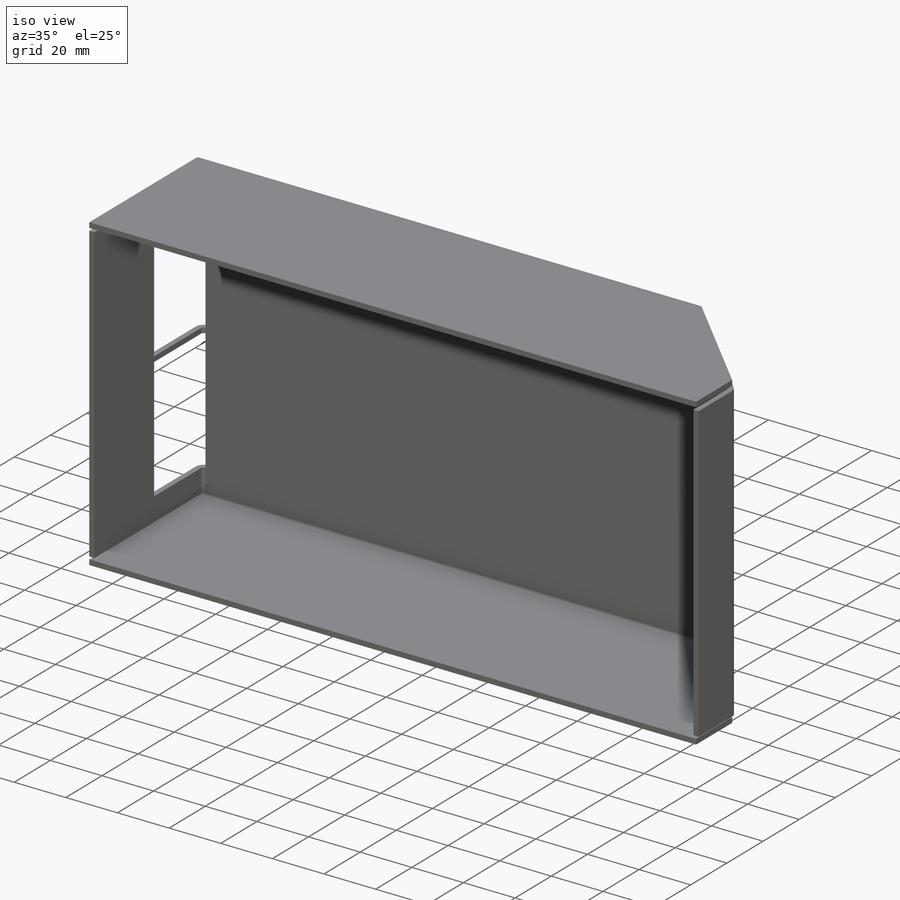
[diagram: iso view]
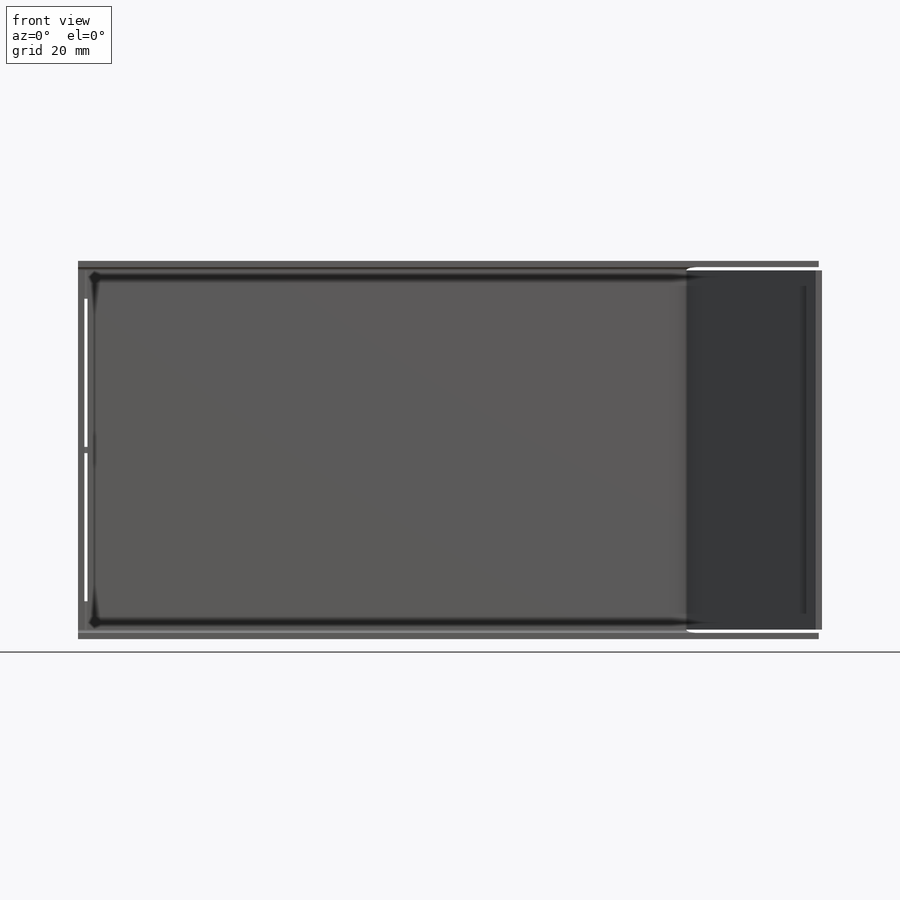
[diagram: front view]
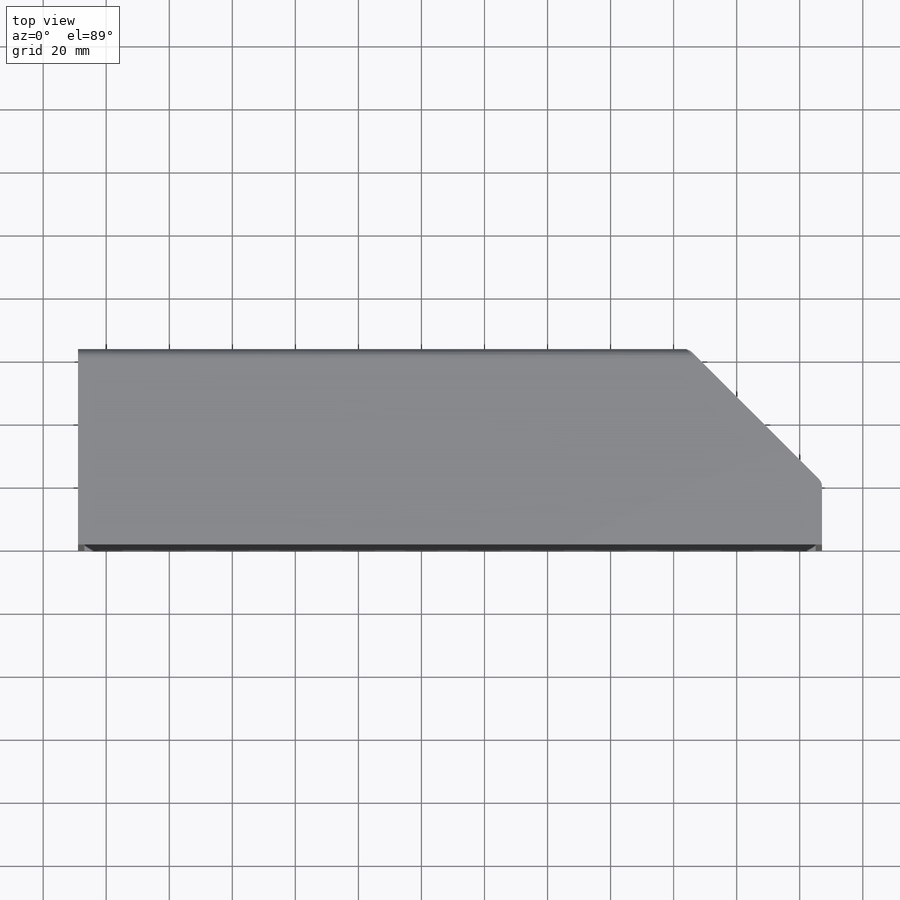
[diagram: top view]
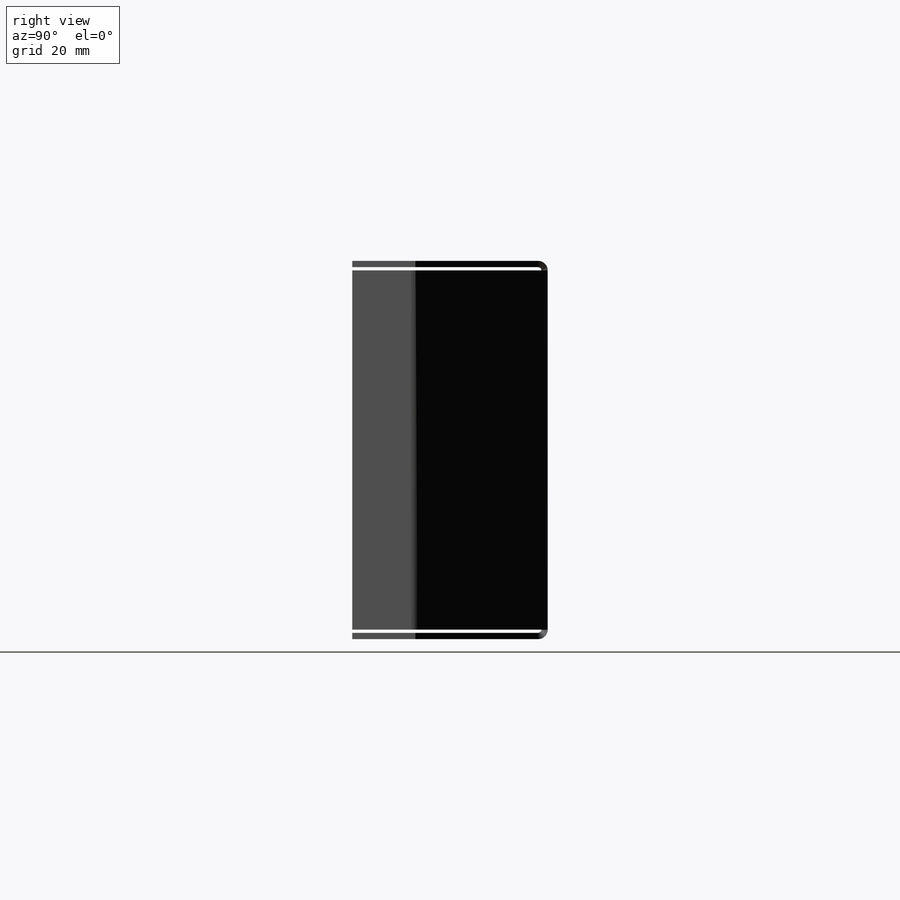
[diagram: right view]
SOLIDWORKS PART (.sldprt)
format: sldprt  version: not decoded by parser v0  size: 379,904 bytes
history: native  units: mm
features: sketch x10, sheet_metal_op x6, cut_extrude x2, material x1, plane x1 + 5 further entries (+11 scaffold rows collapsed; 1 parser-record rows omitted)
feature tree (37):
  scaffold x11  (default folders/planes/origin — collapsed)
  material  "Material <not specified>"
  sketch  "Sketch1"  dims[D1=120.0mm D2=235.0mm]
  sheet_metal_op  "Sheet-Metal1"
  sheet_metal_op  "Base-Flange1"
  sketch  "Sketch6"  dims[c1.D1=1.0mm c1.D4=90.0deg c1.D5=1.0 c1.D8=1.0mm c1.D9=1.0mm c2.D1=1.0mm c2.D2=500.0mm c2.D3=0.0mm c2.D6=10.0mm c2.D7=60.0mm]
  plane  "Center"  Offset=0 Edge-Flange2=0
  sketch  "Sketch9"
  sheet_metal_op  "EdgeBend2"  Edge-Flange3=0
  sketch  "Sketch12"
  sheet_metal_op  "EdgeBend3"
  sketch  "Sketch13"  dims[c1.D1=40.0mm c1.D2=20.0mm c1.D3=40.0mm c2.D3=45.0deg c2.D1=42.0mm]
  cut_extrude  "Cut-Extrude1"  Depth=0 Edge-Flange4=0
  sketch  "Sketch16"
  sheet_metal_op  "EdgeBend4"  Edge-Flange5=0
  sketch  "Sketch19"
  sheet_metal_op  "EdgeBend5"
  sketch  "Sketch20"  dims[c1.D1=47.0mm c1.D2=25.0mm c1.D3=1.0mm c1.D4=1.0mm c2.D2=27.0mm c2.D5=8.5mm c2.D6=11.5mm c2.D7=46.0mm c2.D3=9.0mm c2.D4=9.0mm c3.D5=2.0mm c3.D6=~76.534745mm]
  cut_extrude  "Cut-Extrude2"  [1 undecoded]
  "Flat-Pattern1"
  sketch  "Bend-Lines1"
  sketch  "Bounding-Box1"
  "Flatten-<EdgeBend2>1"
  "Flatten-<EdgeBend3>1"
  "Flatten-<EdgeBend4>1"
  "Flatten-<EdgeBend5>1"
  parser-record x1  (decoder bookkeeping rows leaked as tree rows — omitted from the tree; the rows remain in map.json)
decode coverage: 7 of 18 modeling features carry decoded parameters; 5 rows unclassified (native names shown)
note: ~ marks probable driven/reference dimensions
note: 1 parameter value undecoded
note: suppression state not decoded; provenance and decode notes live in map.json
